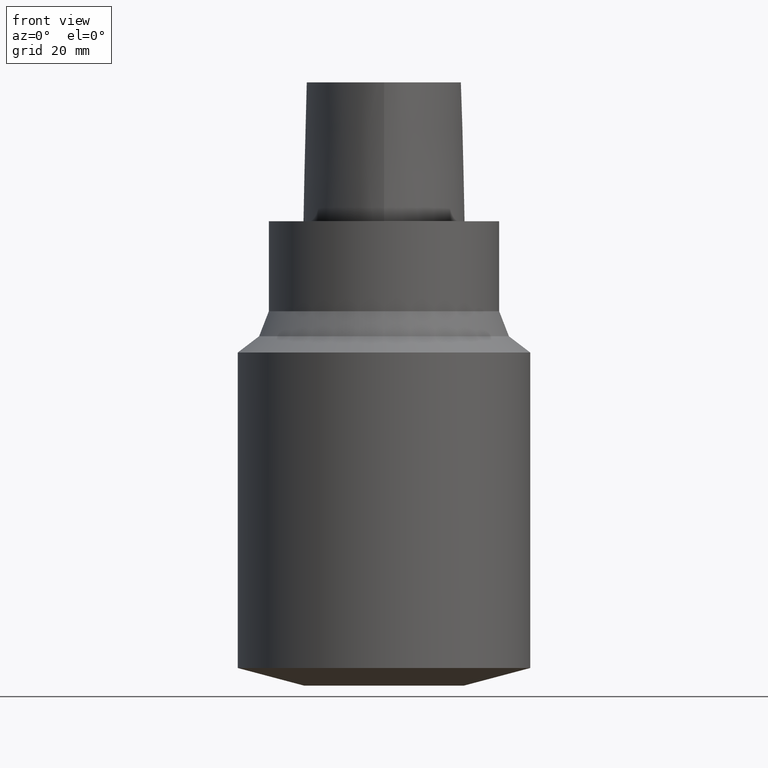
[diagram: clean part render]
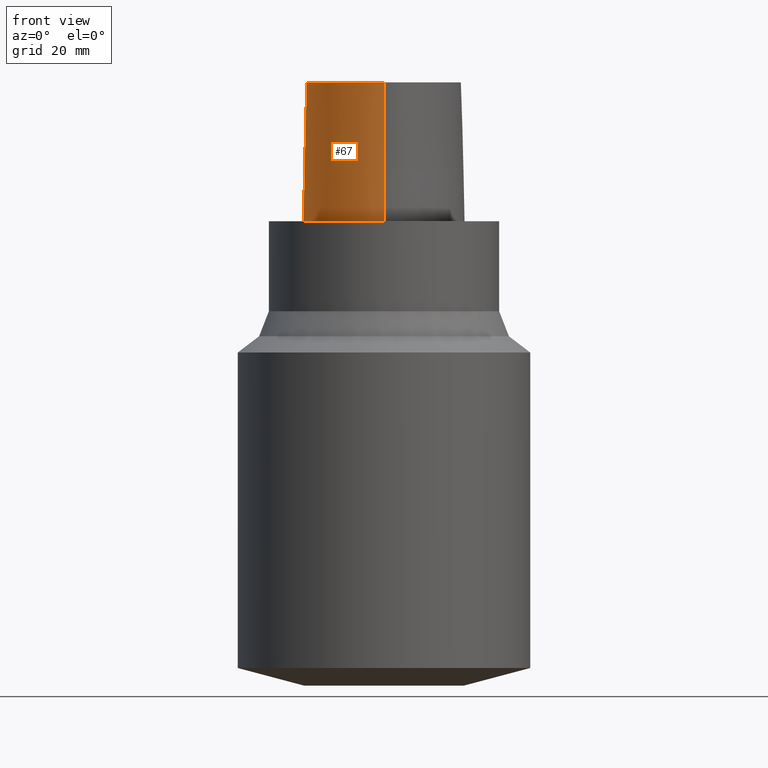
[diagram: same view with one face highlighted and labeled with its STEP entity id]
A machine part, front view. The second image highlights one B-rep face of the part: STEP entity #67.
In plain terms, the highlighted face is a freeform B-spline surface patch.
Its self-contained STEP definition (entity closure, byte-faithful):
#64=EDGE_CURVE('Unnamed[1]',#142,#136,#153,.T.);
#67=ADVANCED_FACE('Unnamed[1]',(#156),#157,.T.);
#69=EDGE_CURVE('Unnamed[1]',#136,#139,#159,.T.);
#95=EDGE_CURVE('Unnamed[1]',#143,#142,#196,.T.);
#100=EDGE_CURVE('Unnamed[1]',#143,#139,#203,.T.);
#136=VERTEX_POINT('',#236);
#139=VERTEX_POINT('',#256);
#142=VERTEX_POINT('',#260);
#143=VERTEX_POINT('',#261);
#153=LINE('',#356,#357);
#156=FACE_OUTER_BOUND('',#361,.T.);
#157=B_SPLINE_SURFACE_WITH_KNOTS('',3,3,((#362,#363,#364,#365),(#366,#367,#368,#369),(#370,#371,#372,#373),(#374,#375,#376,#377),(#378,#379,#380,#381),(#382,#383,#384,#385),(#386,#387,#388,#389),(#390,#391,#392,#393),(#394,#395,#396,#397),(#398,#399,#400,#401),(#402,#403,#404,#405),(#406,#407,#408,#409),(#410,#411,#412,#413),(#414,#415,#416,#417),(#418,#419,#420,#421),(#422,#423,#424,#425),(#426,#427,#428,#429),(#430,#431,#432,#433)),.UNSPECIFIED.,.F.,.F.,.F.,(4,1,1,1,1,1,1,1,1,2,1,1,1,1,4),(4,4),(-6.6151339308743,-6.20168806019465,-5.78824218951501,-5.37479631883537,-4.96135044815572,-4.13445870679644,-3.30756696543715,-2.89412109475751,-2.48067522407786,-2.06722935339822,-1.65378348271857,-1.24033761203893,-0.826891741359287,-0.413445870679644,0.0),(-3.8,0.0),.UNSPECIFIED.);
#159=B_SPLINE_CURVE_WITH_KNOTS('',3,(#436,#437,#438,#439,#440,#441,#442,#443,#444,#445,#446,#447,#448,#449,#450,#451,#452,#453),.UNSPECIFIED.,.F.,.F.,(4,1,1,1,1,1,1,1,1,2,1,1,1,1,4),(-6.6151339308743,-6.20168806019465,-5.78824218951501,-5.37479631883537,-4.96135044815572,-4.13445870679644,-3.30756696543715,-2.89412109475751,-2.48067522407786,-2.06722935339822,-1.65378348271857,-1.24033761203893,-0.826891741359287,-0.413445870679644,0.0),.UNSPECIFIED.);
#196=B_SPLINE_CURVE_WITH_KNOTS('',3,(#499,#500,#501,#502,#503,#504,#505,#506,#507,#508,#509,#510,#511,#512,#513,#514),.UNSPECIFIED.,.F.,.F.,(4,1,1,1,1,1,1,1,1,1,1,1,1,4),(0.0,0.447924670568964,0.9388024242536,1.50591409090711,2.07314340012323,2.72424957442464,3.2253501842849,3.80982102049476,4.34867996267067,4.85900173381144,5.37972031856977,6.03459825488646,6.61113557741484,6.61513393087395),.UNSPECIFIED.);
#203=LINE('',#523,#524);
#236=CARTESIAN_POINT('',(0.04359356758149,-23.4691235068931,7.78075697532443E-032));
#256=CARTESIAN_POINT('',(-0.045171994691285,20.6766009553285,1.6755590516169E-031));
#260=CARTESIAN_POINT('',(0.038736923393866,-22.5191997536361,38.0));
#261=CARTESIAN_POINT('',(-0.001218547003662,19.7276821925089,38.0));
#356=CARTESIAN_POINT('',(0.038736923393866,-22.5191997536361,38.0));
#357=VECTOR('',#566,38.0118715498723);
#361=EDGE_LOOP('',(#568,#569,#570,#571));
#362=CARTESIAN_POINT('',(0.038736923393866,-22.5191997536361,38.0));
#363=CARTESIAN_POINT('',(0.04035580478973,-22.8358410047159,25.3333333333066));
#364=CARTESIAN_POINT('',(0.041974686185626,-23.1524822558133,12.6666666666934));
#365=CARTESIAN_POINT('',(0.04359356758149,-23.4691235068931,7.78075697532443E-032));
#366=CARTESIAN_POINT('',(-1.33786123484754,-22.5261650259856,38.0));
#367=CARTESIAN_POINT('',(-1.38240731367927,-22.8430399310626,25.3333333333066));
#368=CARTESIAN_POINT('',(-1.42695339249092,-23.1599147815484,12.6666666666934));
#369=CARTESIAN_POINT('',(-1.4714994713963,-23.4767895315797,2.46519032881566E-032));
#370=CARTESIAN_POINT('',(-4.08909358431842,-21.9268839879558,38.0));
#371=CARTESIAN_POINT('',(-4.20580731135515,-22.2249725500078,25.3333333333066));
#372=CARTESIAN_POINT('',(-4.32252104640446,-22.5230611651922,12.6666666666934));
#373=CARTESIAN_POINT('',(-4.43923476371401,-22.821149804767,-4.93038065763132E-032));
#374=CARTESIAN_POINT('',(-7.8333083619947,-19.9973514861616,38.0));
#375=CARTESIAN_POINT('',(-8.00568301809614,-20.2649260859405,25.3333333333066));
#376=CARTESIAN_POINT('',(-8.1780576640789,-20.532500564315,12.6666666666934));
#377=CARTESIAN_POINT('',(-8.35043230079961,-20.8000751253325,-9.86076131526265E-032));
#378=CARTESIAN_POINT('',(-11.1035071147626,-17.450554957873,38.0));
#379=CARTESIAN_POINT('',(-11.3173048160562,-17.6855739222454,25.3333333333066));
#380=CARTESIAN_POINT('',(-11.5311025116181,-17.9205928617968,12.6666666666934));
#381=CARTESIAN_POINT('',(-11.744900222602,-18.1556117874078,-1.97215226305253E-031));
#382=CARTESIAN_POINT('',(-14.9379535189057,-13.461132049697,38.0));
#383=CARTESIAN_POINT('',(-15.191622410671,-13.6542981711372,25.3333333333066));
#384=CARTESIAN_POINT('',(-15.4452913389853,-13.8474645327131,12.6666666666934));
#385=CARTESIAN_POINT('',(-15.6989602501314,-14.0406306929147,-1.97215226305253E-031));
#386=CARTESIAN_POINT('',(-18.6681263017223,-7.59391757463204,38.0));
#387=CARTESIAN_POINT('',(-18.9571800800711,-7.73136168081928,25.3333333333066));
#388=CARTESIAN_POINT('',(-19.2462337287194,-7.86880572399774,12.6666666666934));
#389=CARTESIAN_POINT('',(-19.5352875070682,-8.00624990770787,1.97215226305253E-031));
#390=CARTESIAN_POINT('',(-20.7857899858339,-0.952862819790525,38.0));
#391=CARTESIAN_POINT('',(-21.0973808305434,-1.02218087467418,25.3333333333066));
#392=CARTESIAN_POINT('',(-21.408971677436,-1.09149899580772,12.6666666666934));
#393=CARTESIAN_POINT('',(-21.7205626190491,-1.16081708945282,0.0));
#394=CARTESIAN_POINT('',(-21.2911760556836,4.5469215763113,38.0));
#395=CARTESIAN_POINT('',(-21.610337904926,4.54783292082248,25.3333333333066));
#396=CARTESIAN_POINT('',(-21.9294998290918,4.54874426225691,12.6666666666934));
#397=CARTESIAN_POINT('',(-22.2486616783342,4.54965558738736,0.0));
#398=CARTESIAN_POINT('',(-20.7345309521958,8.74909381391006,38.0));
#399=CARTESIAN_POINT('',(-21.0445680426217,8.83349432450556,25.3333333333066));
#400=CARTESIAN_POINT('',(-21.3546050933631,8.91789488065068,12.6666666666934));
#401=CARTESIAN_POINT('',(-21.6646421256468,9.00229539124618,0.0));
#402=CARTESIAN_POINT('',(-19.5531512296439,11.3174844040833,38.0));
#403=CARTESIAN_POINT('',(-19.8336219699984,11.4710077674213,25.3333333333066));
#404=CARTESIAN_POINT('',(-20.1140927680763,11.6245311337623,12.6666666666934));
#405=CARTESIAN_POINT('',(-20.3945635471922,11.7780544971003,0.0));
#406=CARTESIAN_POINT('',(-17.9100913688793,13.524027510437,38.0));
#407=CARTESIAN_POINT('',(-18.1375785458768,13.7487051053655,25.3333333333066));
#408=CARTESIAN_POINT('',(-18.365065665211,13.9733826973296,12.6666666666934));
#409=CARTESIAN_POINT('',(-18.5925528034471,14.1980602922581,0.0));
#410=CARTESIAN_POINT('',(-15.7996349656398,15.3762170634413,38.0));
#411=CARTESIAN_POINT('',(-15.9739761051783,15.6434029846179,25.3333333333066));
#412=CARTESIAN_POINT('',(-16.1483172726872,15.9105889315134,12.6666666666934));
#413=CARTESIAN_POINT('',(-16.3226584122258,16.1777748720707,0.0));
#414=CARTESIAN_POINT('',(-12.1175640002064,17.3825162484012,38.0));
#415=CARTESIAN_POINT('',(-12.2475895903055,17.6724842099619,25.3333333333066));
#416=CARTESIAN_POINT('',(-12.3776152070492,17.9624521925696,12.6666666666934));
#417=CARTESIAN_POINT('',(-12.5076407874579,18.2524201541303,9.86076131526265E-032));
#418=CARTESIAN_POINT('',(-8.21761151654222,18.7588585989994,38.0));
#419=CARTESIAN_POINT('',(-8.30099497910627,19.0656105427881,25.3333333333066));
#420=CARTESIAN_POINT('',(-8.38437843913309,19.3723624535439,12.6666666666934));
#421=CARTESIAN_POINT('',(-8.46776192107786,19.679114377952,9.86076131526265E-032));
#422=CARTESIAN_POINT('',(-4.13466093881225,19.5396850837055,38.0));
#423=CARTESIAN_POINT('',(-4.16658562115465,19.8557172636973,25.3333333333066));
#424=CARTESIAN_POINT('',(-4.19851029939059,20.1717494367229,12.6666666666934));
#425=CARTESIAN_POINT('',(-4.23043497193604,20.487781597334,1.97215226305253E-031));
#426=CARTESIAN_POINT('',(-1.37917220403684,19.6638560588908,38.0));
#427=CARTESIAN_POINT('',(-1.39382511685176,19.98016223565,25.3333333333066));
#428=CARTESIAN_POINT('',(-1.40847802945569,20.296468399885,12.6666666666934));
#429=CARTESIAN_POINT('',(-1.42313094248379,20.6127745766442,1.10933564796705E-031));
#430=CARTESIAN_POINT('',(-0.001218547003662,19.7276821925089,38.0));
#431=CARTESIAN_POINT('',(-0.015869696232855,20.043988446791,25.3333333333066));
#432=CARTESIAN_POINT('',(-0.030520845462092,20.3602947010464,12.6666666666934));
#433=CARTESIAN_POINT('',(-0.045171994691285,20.6766009553285,1.6755590516169E-031));
#436=CARTESIAN_POINT('',(0.04359356758149,-23.4691235068931,7.78075697532443E-032));
#437=CARTESIAN_POINT('',(-1.4714994713963,-23.4767895315797,2.46519032881566E-032));
#438=CARTESIAN_POINT('',(-4.43923476371401,-22.821149804767,-4.93038065763132E-032));
#439=CARTESIAN_POINT('',(-8.35043230079961,-20.8000751253325,-9.86076131526265E-032));
#440=CARTESIAN_POINT('',(-11.744900222602,-18.1556117874078,-1.97215226305253E-031));
#441=CARTESIAN_POINT('',(-15.6989602501314,-14.0406306929147,-1.97215226305253E-031));
#442=CARTESIAN_POINT('',(-19.5352875070682,-8.00624990770787,1.97215226305253E-031));
#443=CARTESIAN_POINT('',(-21.7205626190491,-1.16081708945282,0.0));
#444=CARTESIAN_POINT('',(-22.2486616783342,4.54965558738736,0.0));
#445=CARTESIAN_POINT('',(-21.6646421256468,9.00229539124618,0.0));
#446=CARTESIAN_POINT('',(-20.3945635471922,11.7780544971003,0.0));
#447=CARTESIAN_POINT('',(-18.5925528034471,14.1980602922581,0.0));
#448=CARTESIAN_POINT('',(-16.3226584122258,16.1777748720707,0.0));
#449=CARTESIAN_POINT('',(-12.5076407874579,18.2524201541303,9.86076131526265E-032));
#450=CARTESIAN_POINT('',(-8.46776192107786,19.679114377952,9.86076131526265E-032));
#451=CARTESIAN_POINT('',(-4.23043497193604,20.487781597334,1.97215226305253E-031));
#452=CARTESIAN_POINT('',(-1.42313094248379,20.6127745766442,1.10933564796705E-031));
#453=CARTESIAN_POINT('',(-0.045171994691285,20.6766009553285,1.6755590516169E-031));
#499=CARTESIAN_POINT('',(-0.001218547003662,19.7276821925089,38.0));
#500=CARTESIAN_POINT('',(-1.49408492138443,19.6585333605309,38.0));
#501=CARTESIAN_POINT('',(-4.62297391420352,19.513604770166,38.0));
#502=CARTESIAN_POINT('',(-9.56160616752212,18.4291575730197,38.0));
#503=CARTESIAN_POINT('',(-14.5427684976927,16.2697452580488,38.0));
#504=CARTESIAN_POINT('',(-19.4315563551602,12.5302108980807,38.0));
#505=CARTESIAN_POINT('',(-21.306358833612,6.76352894547076,38.0));
#506=CARTESIAN_POINT('',(-21.0724946936277,0.957075236984038,38.0));
#507=CARTESIAN_POINT('',(-19.7876470880144,-4.34628503581652,38.0));
#508=CARTESIAN_POINT('',(-17.5396999600095,-9.33314444653089,38.0));
#509=CARTESIAN_POINT('',(-14.645447733857,-13.7185760345629,38.0));
#510=CARTESIAN_POINT('',(-10.7996726536643,-17.856257282137,38.0));
#511=CARTESIAN_POINT('',(-6.00479510196376,-21.2687382067675,38.0));
#512=CARTESIAN_POINT('',(-1.90747171908525,-22.5250621415864,38.0));
#513=CARTESIAN_POINT('',(0.025424107066464,-22.5192678176378,38.0));
#514=CARTESIAN_POINT('',(0.038736923394311,-22.519199753636,38.0));
#523=CARTESIAN_POINT('',(-0.001218547003662,19.7276821925089,38.0));
#524=VECTOR('',#619,38.0118715498723);
#566=DIRECTION('',(0.000127766510556,-0.024990186342461,-0.999687688361864));
#568=ORIENTED_EDGE('',*,*,#69,.F.);
#569=ORIENTED_EDGE('',*,*,#64,.F.);
#570=ORIENTED_EDGE('',*,*,#95,.F.);
#571=ORIENTED_EDGE('',*,*,#100,.T.);
#619=DIRECTION('',(-0.001156308434589,0.02496374748543,-0.999687688361864));